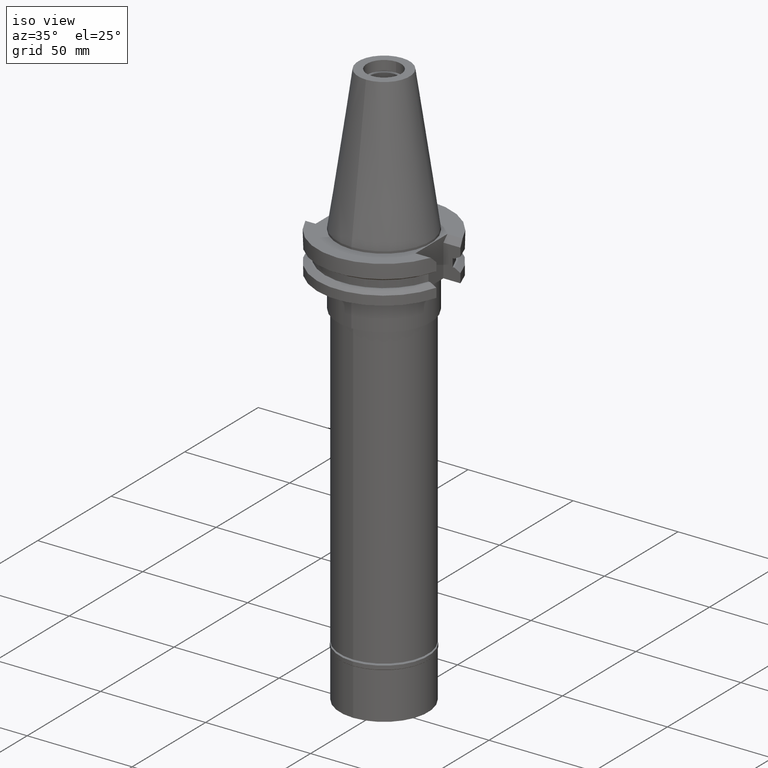
[diagram: clean part render]
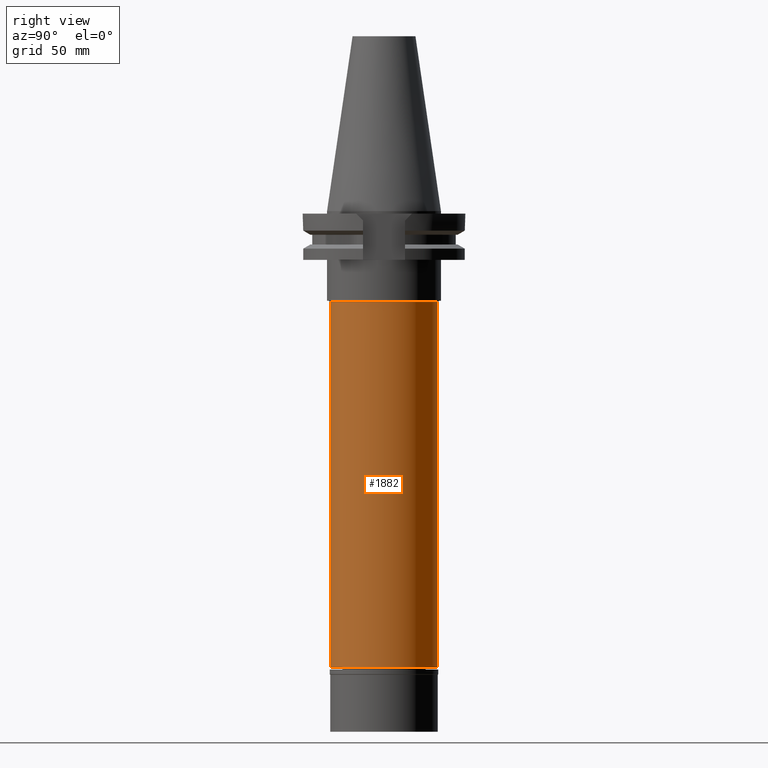
[diagram: tour spotlight — one face highlighted and labeled with its STEP entity id]
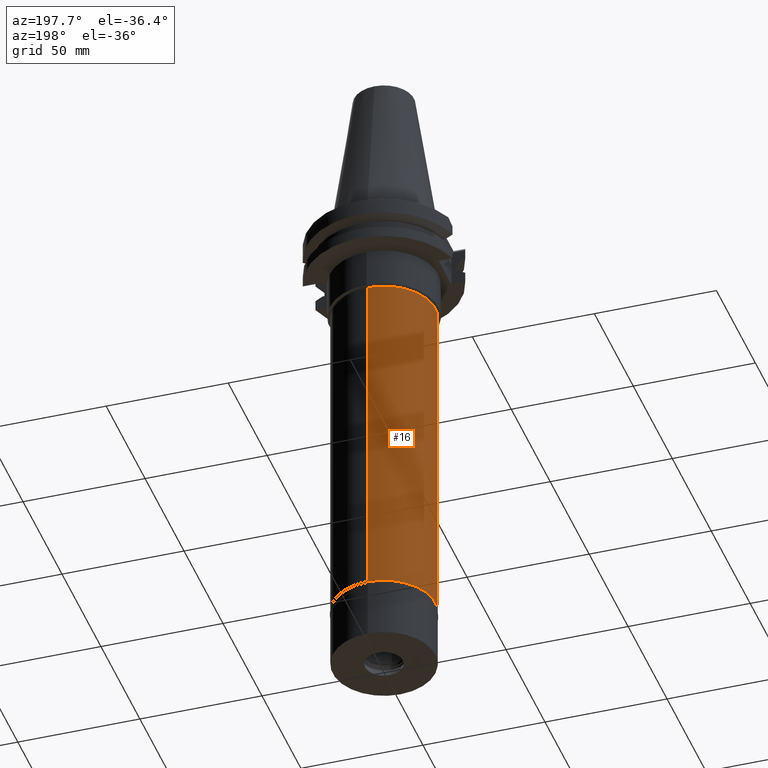
[diagram: tour spotlight — one face highlighted and labeled with its STEP entity id]
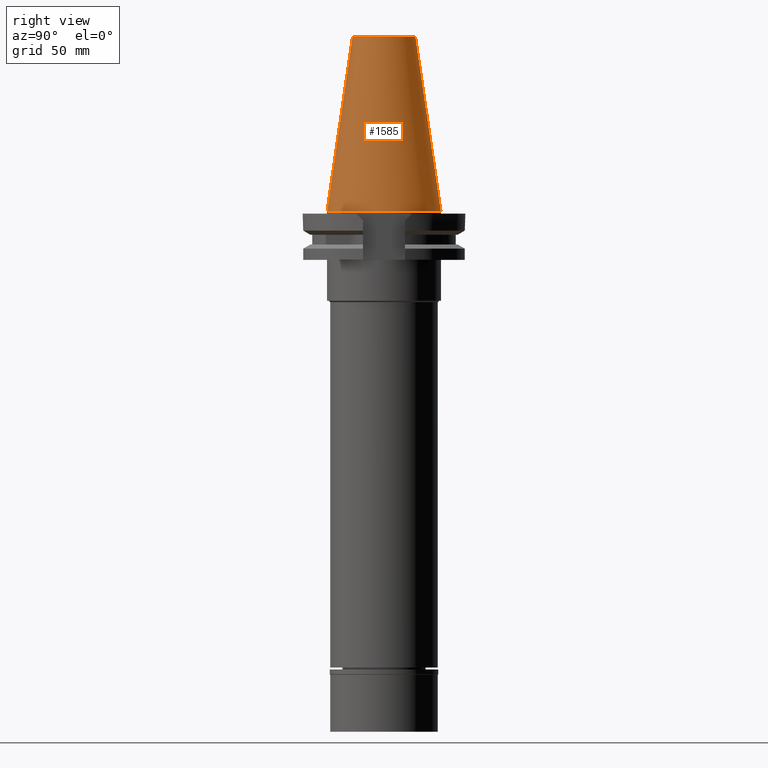
[diagram: tour spotlight — one face highlighted and labeled with its STEP entity id]
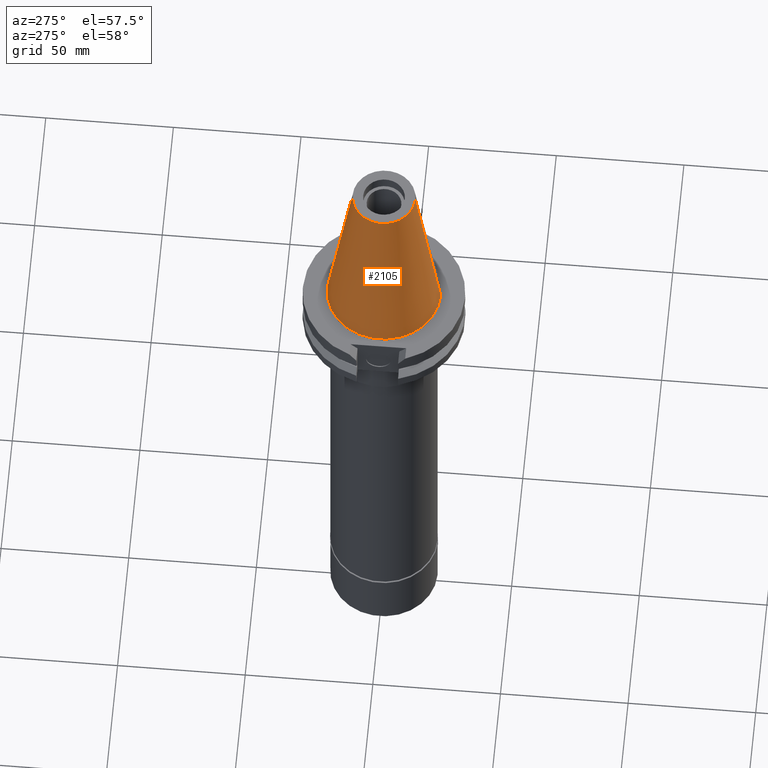
[diagram: tour spotlight — one face highlighted and labeled with its STEP entity id]
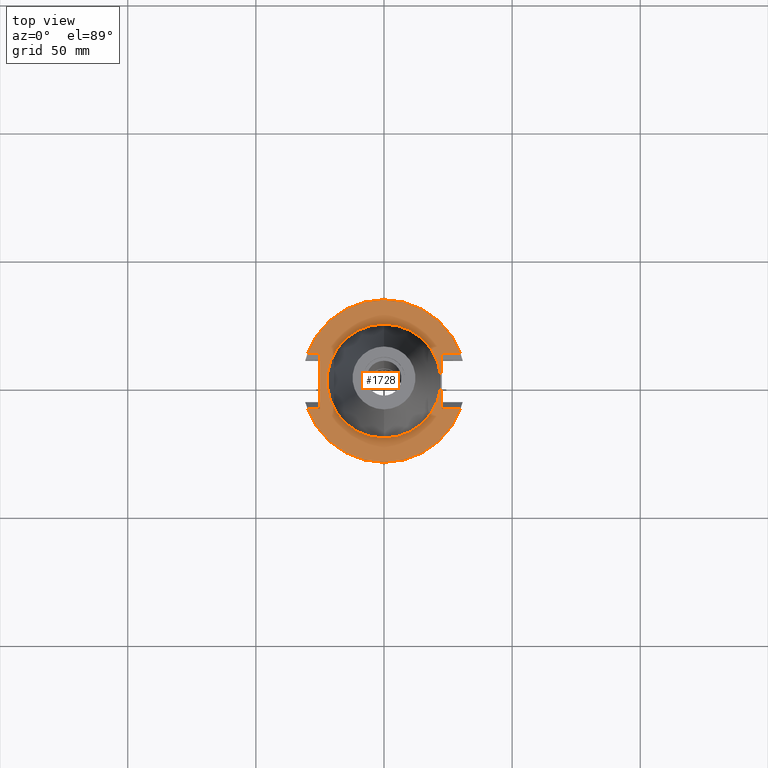
[diagram: tour spotlight — one face highlighted and labeled with its STEP entity id]
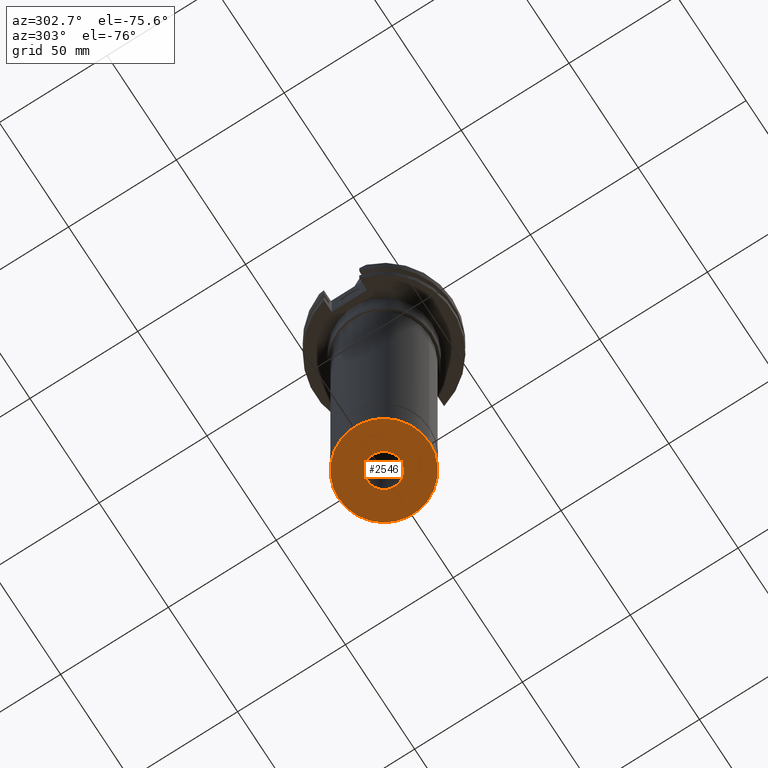
[diagram: tour spotlight — one face highlighted and labeled with its STEP entity id]
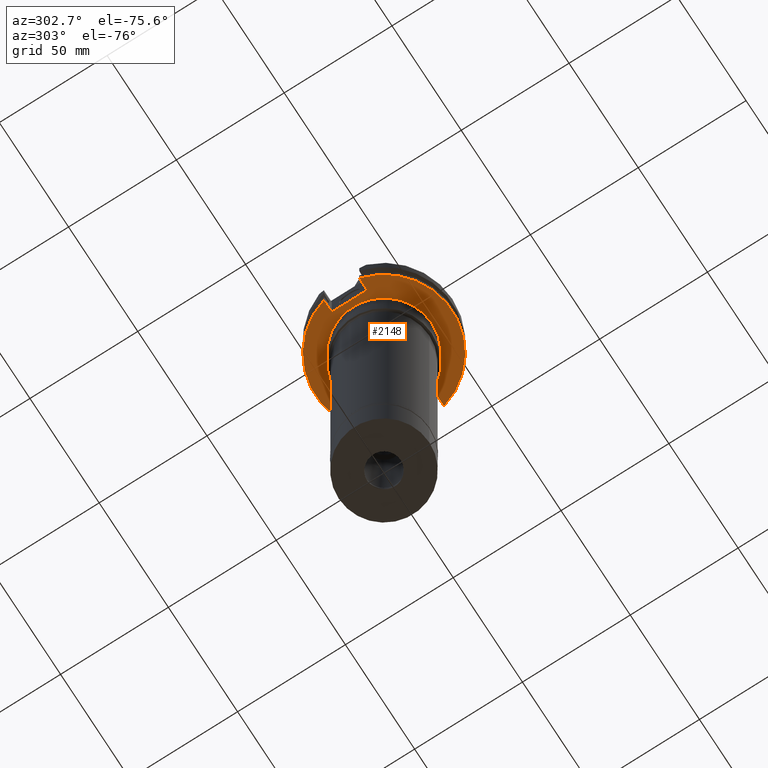
[diagram: tour spotlight — one face highlighted and labeled with its STEP entity id]
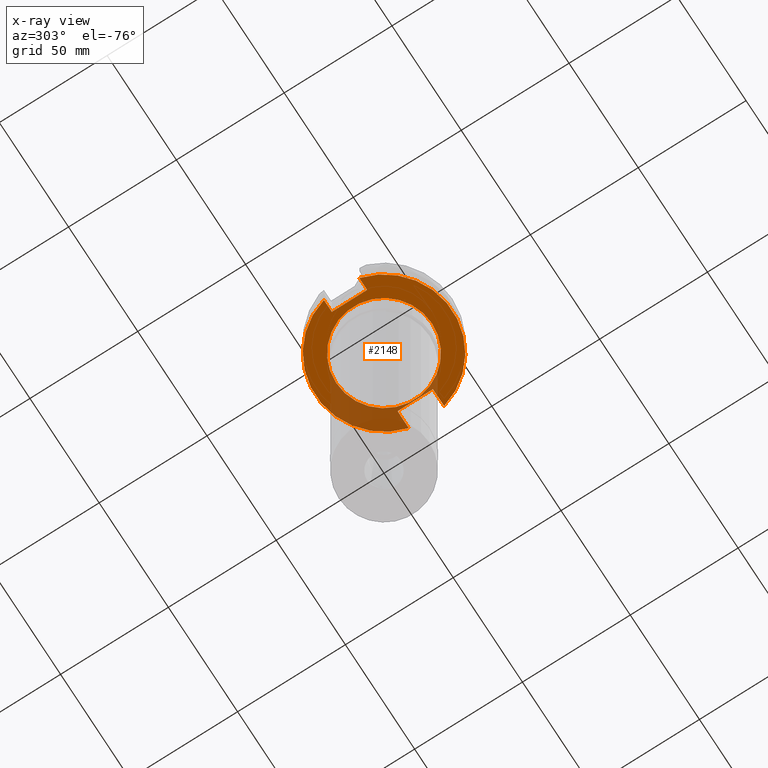
[diagram: x-ray of the same camera — body ghosted, this tour face saturated]
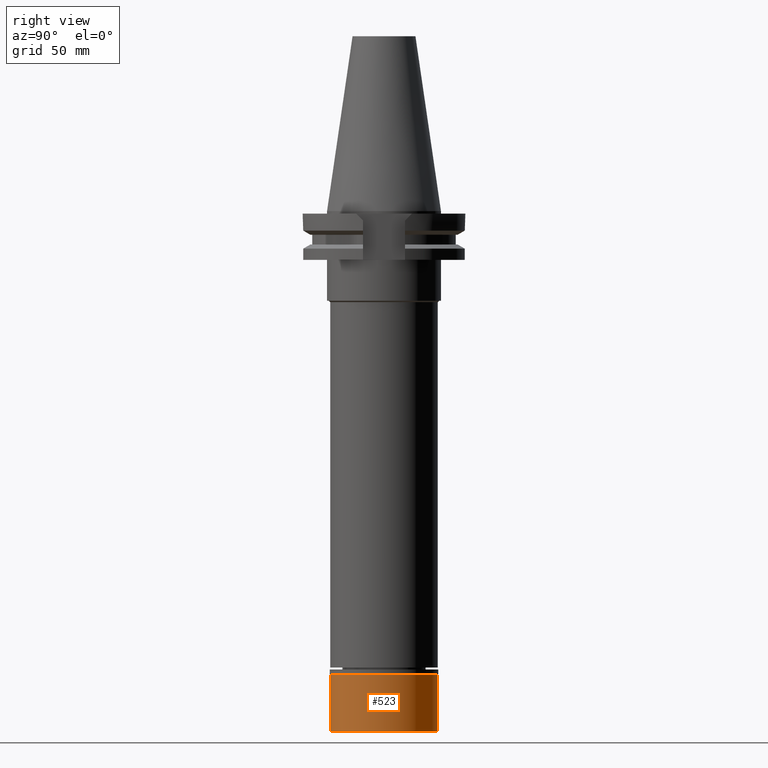
[diagram: tour spotlight — one face highlighted and labeled with its STEP entity id]
A machine part: a face-by-face anatomy tour. The part has 90 B-rep faces; the first image is the clean iso view, then the 8 largest visible faces are spotlighted one at a time (largest first), each with its STEP entity span.

Face 1 — right view, entity #1882. In plain terms, the highlighted cylindrical surface (partial cylindrical patch) has radius 21 mm, axis along (0, 0, -1).
Definition (entity closure, byte-faithful):
#57 = CARTESIAN_POINT ( 'NONE',  ( 0.0000000000000000000, 21.00000000000000000, -35.50000000000000000 ) ) ;
#154 = AXIS2_PLACEMENT_3D ( 'NONE', #854, #2936, #1121 ) ;
#167 = DIRECTION ( 'NONE',  ( 0.0000000000000000000, 0.0000000000000000000, 1.000000000000000000 ) ) ;
#199 = ORIENTED_EDGE ( 'NONE', *, *, #1993, .T. ) ;
#255 = VECTOR ( 'NONE', #792, 1000.000000000000000 ) ;
#348 = CYLINDRICAL_SURFACE ( 'NONE', #154, 21.00000000000000000 ) ;
#428 = EDGE_CURVE ( 'NONE', #2788, #2561, #1457, .T. ) ;
#436 = CARTESIAN_POINT ( 'NONE',  ( 0.0000000000000000000, -21.00000000000000000, -178.0999999999999943 ) ) ;
#455 = LINE ( 'NONE', #3243, #569 ) ;
#569 = VECTOR ( 'NONE', #701, 1000.000000000000000 ) ;
#701 = DIRECTION ( 'NONE',  ( 0.0000000000000000000, 0.0000000000000000000, -1.000000000000000000 ) ) ;
#792 = DIRECTION ( 'NONE',  ( 0.0000000000000000000, 0.0000000000000000000, -1.000000000000000000 ) ) ;
#813 = VERTEX_POINT ( 'NONE', #2826 ) ;
#854 = CARTESIAN_POINT ( 'NONE',  ( 0.0000000000000000000, 2.222091000882999701E-14, 81.44750000000000512 ) ) ;
#989 = ORIENTED_EDGE ( 'NONE', *, *, #3167, .T. ) ;
#1121 = DIRECTION ( 'NONE',  ( 0.0000000000000000000, -1.000000000000000000, 0.0000000000000000000 ) ) ;
#1293 = CIRCLE ( 'NONE', #1726, 21.00000000000000000 ) ;
#1302 = EDGE_LOOP ( 'NONE', ( #989, #199, #2799, #1860 ) ) ;
#1375 = FACE_OUTER_BOUND ( 'NONE', #1302, .T. ) ;
#1452 = DIRECTION ( 'NONE',  ( 0.0000000000000000000, 1.000000000000000000, 0.0000000000000000000 ) ) ;
#1457 = CIRCLE ( 'NONE', #1873, 21.00000000000000000 ) ;
#1670 = DIRECTION ( 'NONE',  ( 0.0000000000000000000, 0.0000000000000000000, -1.000000000000000000 ) ) ;
#1691 = CARTESIAN_POINT ( 'NONE',  ( 0.0000000000000000000, 0.0000000000000000000, -35.50000000000000000 ) ) ;
#1726 = AXIS2_PLACEMENT_3D ( 'NONE', #1691, #1670, #1452 ) ;
#1860 = ORIENTED_EDGE ( 'NONE', *, *, #2916, .F. ) ;
#1873 = AXIS2_PLACEMENT_3D ( 'NONE', #1880, #167, #2640 ) ;
#1880 = CARTESIAN_POINT ( 'NONE',  ( 0.0000000000000000000, 2.222091000882999701E-14, -178.0999999999999943 ) ) ;
#1882 = ADVANCED_FACE ( 'NONE', ( #1375 ), #348, .T. ) ;
#1993 = EDGE_CURVE ( 'NONE', #813, #2788, #455, .T. ) ;
#2116 = VERTEX_POINT ( 'NONE', #57 ) ;
#2117 = CARTESIAN_POINT ( 'NONE',  ( 0.0000000000000000000, 21.00000000000000000, -178.0999999999999943 ) ) ;
#2265 = CARTESIAN_POINT ( 'NONE',  ( 0.0000000000000000000, 21.00000000000000000, -35.50000000000000000 ) ) ;
#2561 = VERTEX_POINT ( 'NONE', #2117 ) ;
#2640 = DIRECTION ( 'NONE',  ( 0.0000000000000000000, -1.000000000000000000, 0.0000000000000000000 ) ) ;
#2788 = VERTEX_POINT ( 'NONE', #436 ) ;
#2799 = ORIENTED_EDGE ( 'NONE', *, *, #428, .T. ) ;
#2826 = CARTESIAN_POINT ( 'NONE',  ( 0.0000000000000000000, -21.00000000000000000, -35.50000000000000000 ) ) ;
#2916 = EDGE_CURVE ( 'NONE', #2116, #2561, #3089, .T. ) ;
#2936 = DIRECTION ( 'NONE',  ( 0.0000000000000000000, 0.0000000000000000000, -1.000000000000000000 ) ) ;
#3089 = LINE ( 'NONE', #2265, #255 ) ;
#3167 = EDGE_CURVE ( 'NONE', #2116, #813, #1293, .T. ) ;
#3243 = CARTESIAN_POINT ( 'NONE',  ( 0.0000000000000000000, -21.00000000000000000, -35.50000000000000000 ) ) ;

Face 2 — auxiliary view, entity #16. In plain terms, the highlighted cylindrical surface (partial cylindrical patch) has radius 21 mm, axis along (0, 0, -1).
Definition (entity closure, byte-faithful):
#16 = ADVANCED_FACE ( 'NONE', ( #2006 ), #2801, .T. ) ;
#57 = CARTESIAN_POINT ( 'NONE',  ( 0.0000000000000000000, 21.00000000000000000, -35.50000000000000000 ) ) ;
#240 = DIRECTION ( 'NONE',  ( 0.0000000000000000000, 0.0000000000000000000, -1.000000000000000000 ) ) ;
#255 = VECTOR ( 'NONE', #792, 1000.000000000000000 ) ;
#373 = EDGE_LOOP ( 'NONE', ( #2215, #594, #2947, #1201 ) ) ;
#436 = CARTESIAN_POINT ( 'NONE',  ( 0.0000000000000000000, -21.00000000000000000, -178.0999999999999943 ) ) ;
#455 = LINE ( 'NONE', #3243, #569 ) ;
#460 = CARTESIAN_POINT ( 'NONE',  ( 0.0000000000000000000, 0.0000000000000000000, -35.50000000000000000 ) ) ;
#569 = VECTOR ( 'NONE', #701, 1000.000000000000000 ) ;
#594 = ORIENTED_EDGE ( 'NONE', *, *, #1993, .F. ) ;
#701 = DIRECTION ( 'NONE',  ( 0.0000000000000000000, 0.0000000000000000000, -1.000000000000000000 ) ) ;
#719 = AXIS2_PLACEMENT_3D ( 'NONE', #460, #240, #3279 ) ;
#792 = DIRECTION ( 'NONE',  ( 0.0000000000000000000, 0.0000000000000000000, -1.000000000000000000 ) ) ;
#813 = VERTEX_POINT ( 'NONE', #2826 ) ;
#1201 = ORIENTED_EDGE ( 'NONE', *, *, #2916, .T. ) ;
#1492 = CARTESIAN_POINT ( 'NONE',  ( 0.0000000000000000000, 2.222091000882999701E-14, 81.44750000000000512 ) ) ;
#1543 = EDGE_CURVE ( 'NONE', #813, #2116, #3233, .T. ) ;
#1632 = AXIS2_PLACEMENT_3D ( 'NONE', #1492, #2506, #3038 ) ;
#1993 = EDGE_CURVE ( 'NONE', #813, #2788, #455, .T. ) ;
#2006 = FACE_OUTER_BOUND ( 'NONE', #373, .T. ) ;
#2116 = VERTEX_POINT ( 'NONE', #57 ) ;
#2117 = CARTESIAN_POINT ( 'NONE',  ( 0.0000000000000000000, 21.00000000000000000, -178.0999999999999943 ) ) ;
#2149 = EDGE_CURVE ( 'NONE', #2561, #2788, #2649, .T. ) ;
#2215 = ORIENTED_EDGE ( 'NONE', *, *, #2149, .T. ) ;
#2265 = CARTESIAN_POINT ( 'NONE',  ( 0.0000000000000000000, 21.00000000000000000, -35.50000000000000000 ) ) ;
#2298 = DIRECTION ( 'NONE',  ( 0.0000000000000000000, 1.000000000000000000, 0.0000000000000000000 ) ) ;
#2506 = DIRECTION ( 'NONE',  ( 0.0000000000000000000, 0.0000000000000000000, -1.000000000000000000 ) ) ;
#2536 = AXIS2_PLACEMENT_3D ( 'NONE', #2863, #3120, #2298 ) ;
#2561 = VERTEX_POINT ( 'NONE', #2117 ) ;
#2649 = CIRCLE ( 'NONE', #2536, 21.00000000000000000 ) ;
#2788 = VERTEX_POINT ( 'NONE', #436 ) ;
#2801 = CYLINDRICAL_SURFACE ( 'NONE', #1632, 21.00000000000000000 ) ;
#2826 = CARTESIAN_POINT ( 'NONE',  ( 0.0000000000000000000, -21.00000000000000000, -35.50000000000000000 ) ) ;
#2863 = CARTESIAN_POINT ( 'NONE',  ( 0.0000000000000000000, 2.222091000882999701E-14, -178.0999999999999943 ) ) ;
#2916 = EDGE_CURVE ( 'NONE', #2116, #2561, #3089, .T. ) ;
#2947 = ORIENTED_EDGE ( 'NONE', *, *, #1543, .T. ) ;
#3038 = DIRECTION ( 'NONE',  ( 0.0000000000000000000, -1.000000000000000000, 0.0000000000000000000 ) ) ;
#3089 = LINE ( 'NONE', #2265, #255 ) ;
#3120 = DIRECTION ( 'NONE',  ( 0.0000000000000000000, 0.0000000000000000000, 1.000000000000000000 ) ) ;
#3233 = CIRCLE ( 'NONE', #719, 21.00000000000000000 ) ;
#3243 = CARTESIAN_POINT ( 'NONE',  ( 0.0000000000000000000, -21.00000000000000000, -35.50000000000000000 ) ) ;
#3279 = DIRECTION ( 'NONE',  ( 0.0000000000000000000, -1.000000000000000000, 0.0000000000000000000 ) ) ;

Face 3 — right view, entity #1585. In plain terms, the highlighted conical surface has half-angle 8.297 deg.
Definition (entity closure, byte-faithful):
#202 = EDGE_CURVE ( 'NONE', #2384, #1920, #1658, .T. ) ;
#527 = EDGE_CURVE ( 'NONE', #1145, #2384, #2111, .T. ) ;
#554 = AXIS2_PLACEMENT_3D ( 'NONE', #1751, #2993, #720 ) ;
#647 = DIRECTION ( 'NONE',  ( 0.0000000000000000000, 1.000000000000000000, 0.0000000000000000000 ) ) ;
#720 = DIRECTION ( 'NONE',  ( 0.0000000000000000000, -1.000000000000000000, 0.0000000000000000000 ) ) ;
#946 = CARTESIAN_POINT ( 'NONE',  ( 0.0000000000000000000, 1.642557519355999895E-14, -3.126388037344000570E-13 ) ) ;
#965 = FACE_OUTER_BOUND ( 'NONE', #2358, .T. ) ;
#1014 = VECTOR ( 'NONE', #2946, 1000.000000000000114 ) ;
#1145 = VERTEX_POINT ( 'NONE', #2896 ) ;
#1343 = VERTEX_POINT ( 'NONE', #2411 ) ;
#1389 = ORIENTED_EDGE ( 'NONE', *, *, #527, .F. ) ;
#1524 = DIRECTION ( 'NONE',  ( 0.0000000000000000000, -0.1443069799456937474, -0.9895329683941577192 ) ) ;
#1568 = CARTESIAN_POINT ( 'NONE',  ( 0.0000000000000000000, -12.27186888070000137, 68.25000000000000000 ) ) ;
#1585 = ADVANCED_FACE ( 'NONE', ( #965 ), #1991, .T. ) ;
#1600 = AXIS2_PLACEMENT_3D ( 'NONE', #946, #2735, #3258 ) ;
#1625 = VECTOR ( 'NONE', #1524, 1000.000000000000114 ) ;
#1658 = CIRCLE ( 'NONE', #1600, 22.22500000000000142 ) ;
#1662 = CARTESIAN_POINT ( 'NONE',  ( 0.0000000000000000000, -22.22500000000000142, -2.415845301584000349E-13 ) ) ;
#1692 = ORIENTED_EDGE ( 'NONE', *, *, #2553, .T. ) ;
#1751 = CARTESIAN_POINT ( 'NONE',  ( 0.0000000000000000000, 1.642557519355999895E-14, 34.12500000000000000 ) ) ;
#1878 = AXIS2_PLACEMENT_3D ( 'NONE', #2666, #2153, #647 ) ;
#1920 = VERTEX_POINT ( 'NONE', #1662 ) ;
#1991 = CONICAL_SURFACE ( 'NONE', #554, 17.24843444035000317, 0.1448125860318199565 ) ;
#1994 = CIRCLE ( 'NONE', #1878, 12.27186888070000137 ) ;
#2111 = LINE ( 'NONE', #2379, #1014 ) ;
#2153 = DIRECTION ( 'NONE',  ( 0.0000000000000000000, 0.0000000000000000000, -1.000000000000000000 ) ) ;
#2249 = ORIENTED_EDGE ( 'NONE', *, *, #2830, .T. ) ;
#2295 = LINE ( 'NONE', #1568, #1625 ) ;
#2358 = EDGE_LOOP ( 'NONE', ( #1692, #2249, #2412, #1389 ) ) ;
#2379 = CARTESIAN_POINT ( 'NONE',  ( 0.0000000000000000000, 12.27186888070000137, 68.25000000000000000 ) ) ;
#2384 = VERTEX_POINT ( 'NONE', #3135 ) ;
#2411 = CARTESIAN_POINT ( 'NONE',  ( 0.0000000000000000000, -12.27186888070000137, 68.25000000000000000 ) ) ;
#2412 = ORIENTED_EDGE ( 'NONE', *, *, #202, .F. ) ;
#2553 = EDGE_CURVE ( 'NONE', #1145, #1343, #1994, .T. ) ;
#2666 = CARTESIAN_POINT ( 'NONE',  ( 0.0000000000000000000, 1.642557519355999895E-14, 68.25000000000000000 ) ) ;
#2735 = DIRECTION ( 'NONE',  ( 0.0000000000000000000, 0.0000000000000000000, -1.000000000000000000 ) ) ;
#2830 = EDGE_CURVE ( 'NONE', #1343, #1920, #2295, .T. ) ;
#2896 = CARTESIAN_POINT ( 'NONE',  ( 0.0000000000000000000, 12.27186888070000137, 68.25000000000000000 ) ) ;
#2946 = DIRECTION ( 'NONE',  ( 0.0000000000000000000, 0.1443069799456937474, -0.9895329683941577192 ) ) ;
#2993 = DIRECTION ( 'NONE',  ( 0.0000000000000000000, 0.0000000000000000000, -1.000000000000000000 ) ) ;
#3135 = CARTESIAN_POINT ( 'NONE',  ( 0.0000000000000000000, 22.22500000000000142, -2.415845301584000349E-13 ) ) ;
#3258 = DIRECTION ( 'NONE',  ( 0.0000000000000000000, 1.000000000000000000, 0.0000000000000000000 ) ) ;

Face 4 — auxiliary view, entity #2105. In plain terms, the highlighted conical surface has half-angle 8.297 deg.
Definition (entity closure, byte-faithful):
#24 = ORIENTED_EDGE ( 'NONE', *, *, #527, .T. ) ;
#28 = DIRECTION ( 'NONE',  ( 0.0000000000000000000, 0.0000000000000000000, -1.000000000000000000 ) ) ;
#142 = DIRECTION ( 'NONE',  ( 0.0000000000000000000, -1.000000000000000000, 0.0000000000000000000 ) ) ;
#171 = DIRECTION ( 'NONE',  ( 0.0000000000000000000, 0.0000000000000000000, -1.000000000000000000 ) ) ;
#177 = ORIENTED_EDGE ( 'NONE', *, *, #2453, .T. ) ;
#527 = EDGE_CURVE ( 'NONE', #1145, #2384, #2111, .T. ) ;
#543 = DIRECTION ( 'NONE',  ( 0.0000000000000000000, -1.000000000000000000, 0.0000000000000000000 ) ) ;
#584 = ORIENTED_EDGE ( 'NONE', *, *, #2830, .F. ) ;
#764 = FACE_OUTER_BOUND ( 'NONE', #2449, .T. ) ;
#818 = AXIS2_PLACEMENT_3D ( 'NONE', #2929, #171, #2440 ) ;
#1014 = VECTOR ( 'NONE', #2946, 1000.000000000000114 ) ;
#1112 = ORIENTED_EDGE ( 'NONE', *, *, #3210, .F. ) ;
#1145 = VERTEX_POINT ( 'NONE', #2896 ) ;
#1190 = AXIS2_PLACEMENT_3D ( 'NONE', #2415, #1835, #142 ) ;
#1343 = VERTEX_POINT ( 'NONE', #2411 ) ;
#1524 = DIRECTION ( 'NONE',  ( 0.0000000000000000000, -0.1443069799456937474, -0.9895329683941577192 ) ) ;
#1568 = CARTESIAN_POINT ( 'NONE',  ( 0.0000000000000000000, -12.27186888070000137, 68.25000000000000000 ) ) ;
#1625 = VECTOR ( 'NONE', #1524, 1000.000000000000114 ) ;
#1662 = CARTESIAN_POINT ( 'NONE',  ( 0.0000000000000000000, -22.22500000000000142, -2.415845301584000349E-13 ) ) ;
#1807 = CARTESIAN_POINT ( 'NONE',  ( 0.0000000000000000000, 1.642557519355999895E-14, 34.12500000000000000 ) ) ;
#1835 = DIRECTION ( 'NONE',  ( 0.0000000000000000000, 0.0000000000000000000, -1.000000000000000000 ) ) ;
#1920 = VERTEX_POINT ( 'NONE', #1662 ) ;
#1961 = AXIS2_PLACEMENT_3D ( 'NONE', #1807, #28, #543 ) ;
#2102 = CONICAL_SURFACE ( 'NONE', #1961, 17.24843444035000317, 0.1448125860318199565 ) ;
#2105 = ADVANCED_FACE ( 'NONE', ( #764 ), #2102, .T. ) ;
#2111 = LINE ( 'NONE', #2379, #1014 ) ;
#2253 = CIRCLE ( 'NONE', #818, 12.27186888070000137 ) ;
#2295 = LINE ( 'NONE', #1568, #1625 ) ;
#2379 = CARTESIAN_POINT ( 'NONE',  ( 0.0000000000000000000, 12.27186888070000137, 68.25000000000000000 ) ) ;
#2384 = VERTEX_POINT ( 'NONE', #3135 ) ;
#2411 = CARTESIAN_POINT ( 'NONE',  ( 0.0000000000000000000, -12.27186888070000137, 68.25000000000000000 ) ) ;
#2415 = CARTESIAN_POINT ( 'NONE',  ( 0.0000000000000000000, 1.642557519355999895E-14, -3.126388037344000570E-13 ) ) ;
#2440 = DIRECTION ( 'NONE',  ( 0.0000000000000000000, -1.000000000000000000, 0.0000000000000000000 ) ) ;
#2449 = EDGE_LOOP ( 'NONE', ( #1112, #584, #177, #24 ) ) ;
#2453 = EDGE_CURVE ( 'NONE', #1343, #1145, #2253, .T. ) ;
#2623 = CIRCLE ( 'NONE', #1190, 22.22500000000000142 ) ;
#2830 = EDGE_CURVE ( 'NONE', #1343, #1920, #2295, .T. ) ;
#2896 = CARTESIAN_POINT ( 'NONE',  ( 0.0000000000000000000, 12.27186888070000137, 68.25000000000000000 ) ) ;
#2929 = CARTESIAN_POINT ( 'NONE',  ( 0.0000000000000000000, 1.642557519355999895E-14, 68.25000000000000000 ) ) ;
#2946 = DIRECTION ( 'NONE',  ( 0.0000000000000000000, 0.1443069799456937474, -0.9895329683941577192 ) ) ;
#3135 = CARTESIAN_POINT ( 'NONE',  ( 0.0000000000000000000, 22.22500000000000142, -2.415845301584000349E-13 ) ) ;
#3210 = EDGE_CURVE ( 'NONE', #1920, #2384, #2623, .T. ) ;

Face 5 — top view, entity #1728. In plain terms, the highlighted planar face has unit normal (0, 0, -1).
Definition (entity closure, byte-faithful):
#10 = EDGE_CURVE ( 'NONE', #1035, #2472, #235, .T. ) ;
#62 = CARTESIAN_POINT ( 'NONE',  ( 0.0000000000000000000, 22.22500000000000142, -1.000000000000000000 ) ) ;
#85 = CARTESIAN_POINT ( 'NONE',  ( 0.0000000000000000000, 2.222091000882999701E-14, -1.000000000000000000 ) ) ;
#96 = CARTESIAN_POINT ( 'NONE',  ( 22.57000000000000028, 10.89000000000000057, -1.000000000000000000 ) ) ;
#113 = CARTESIAN_POINT ( 'NONE',  ( 0.0000000000000000000, 2.222091000882999701E-14, -1.000000000000000000 ) ) ;
#124 = ORIENTED_EDGE ( 'NONE', *, *, #1646, .T. ) ;
#235 = LINE ( 'NONE', #1729, #358 ) ;
#290 = CARTESIAN_POINT ( 'NONE',  ( 0.0000000000000000000, 1.212400331155999925E-14, -1.000000000000000000 ) ) ;
#343 = CARTESIAN_POINT ( 'NONE',  ( 29.82399034335000110, 10.89000000000000057, -1.000000000001000089 ) ) ;
#345 = ORIENTED_EDGE ( 'NONE', *, *, #3186, .F. ) ;
#346 = CARTESIAN_POINT ( 'NONE',  ( 22.57000000000000028, -10.89000000000000057, -1.000000000000000000 ) ) ;
#356 = LINE ( 'NONE', #2436, #1917 ) ;
#358 = VECTOR ( 'NONE', #452, 1000.000000000000000 ) ;
#389 = DIRECTION ( 'NONE',  ( 0.0000000000000000000, 1.000000000000000000, 0.0000000000000000000 ) ) ;
#452 = DIRECTION ( 'NONE',  ( 0.0000000000000000000, -1.000000000000000000, 0.0000000000000000000 ) ) ;
#454 = AXIS2_PLACEMENT_3D ( 'NONE', #85, #819, #389 ) ;
#457 = EDGE_CURVE ( 'NONE', #2472, #2430, #356, .T. ) ;
#500 = CARTESIAN_POINT ( 'NONE',  ( -24.98000000000000043, 10.89000000000000057, -1.000000000000000000 ) ) ;
#560 = LINE ( 'NONE', #1836, #2764 ) ;
#604 = EDGE_CURVE ( 'NONE', #2430, #687, #2520, .T. ) ;
#628 = EDGE_CURVE ( 'NONE', #1656, #2614, #1344, .T. ) ;
#687 = VERTEX_POINT ( 'NONE', #1960 ) ;
#695 = CARTESIAN_POINT ( 'NONE',  ( 0.0000000000000000000, 2.222091000882999701E-14, -1.000000000000000000 ) ) ;
#713 = EDGE_CURVE ( 'NONE', #2859, #2474, #758, .T. ) ;
#758 = LINE ( 'NONE', #2261, #2085 ) ;
#819 = DIRECTION ( 'NONE',  ( 0.0000000000000000000, 0.0000000000000000000, -1.000000000000000000 ) ) ;
#830 = ORIENTED_EDGE ( 'NONE', *, *, #2146, .T. ) ;
#970 = VERTEX_POINT ( 'NONE', #1653 ) ;
#1006 = DIRECTION ( 'NONE',  ( -1.000000000000000000, -8.727782216946000332E-14, 0.0000000000000000000 ) ) ;
#1035 = VERTEX_POINT ( 'NONE', #96 ) ;
#1038 = EDGE_CURVE ( 'NONE', #2614, #1656, #1285, .T. ) ;
#1229 = CARTESIAN_POINT ( 'NONE',  ( -24.98000000000000043, 10.89000000000000057, -1.000000000000000000 ) ) ;
#1238 = DIRECTION ( 'NONE',  ( 0.0000000000000000000, 1.000000000000000000, 0.0000000000000000000 ) ) ;
#1240 = AXIS2_PLACEMENT_3D ( 'NONE', #695, #1473, #1757 ) ;
#1247 = AXIS2_PLACEMENT_3D ( 'NONE', #1711, #3000, #1238 ) ;
#1285 = CIRCLE ( 'NONE', #2283, 22.22500000000000142 ) ;
#1327 = FACE_OUTER_BOUND ( 'NONE', #1954, .T. ) ;
#1338 = CARTESIAN_POINT ( 'NONE',  ( -24.98000000000000043, -10.89000000000000057, -1.000000000000000000 ) ) ;
#1341 = ORIENTED_EDGE ( 'NONE', *, *, #10, .F. ) ;
#1344 = CIRCLE ( 'NONE', #1247, 22.22500000000000142 ) ;
#1368 = CARTESIAN_POINT ( 'NONE',  ( 29.82399034335000110, -10.89000000000000057, -1.000000000001000089 ) ) ;
#1473 = DIRECTION ( 'NONE',  ( 0.0000000000000000000, 0.0000000000000000000, -1.000000000000000000 ) ) ;
#1528 = PLANE ( 'NONE',  #3194 ) ;
#1557 = DIRECTION ( 'NONE',  ( -1.000000000000000000, 8.764453570797998445E-14, 0.0000000000000000000 ) ) ;
#1594 = FACE_BOUND ( 'NONE', #1935, .T. ) ;
#1614 = DIRECTION ( 'NONE',  ( 0.0000000000000000000, -1.000000000000000000, 0.0000000000000000000 ) ) ;
#1635 = ORIENTED_EDGE ( 'NONE', *, *, #628, .F. ) ;
#1646 = EDGE_CURVE ( 'NONE', #970, #687, #1838, .T. ) ;
#1653 = CARTESIAN_POINT ( 'NONE',  ( -24.98000000000000043, -10.89000000000000057, -1.000000000000000000 ) ) ;
#1656 = VERTEX_POINT ( 'NONE', #62 ) ;
#1711 = CARTESIAN_POINT ( 'NONE',  ( 0.0000000000000000000, 2.222091000882999701E-14, -1.000000000000000000 ) ) ;
#1728 = ADVANCED_FACE ( 'NONE', ( #1327, #1594 ), #1528, .F. ) ;
#1729 = CARTESIAN_POINT ( 'NONE',  ( 22.57000000000000028, 10.89000000000000057, -1.000000000000000000 ) ) ;
#1738 = VECTOR ( 'NONE', #2443, 1000.000000000000000 ) ;
#1757 = DIRECTION ( 'NONE',  ( 0.0000000000000000000, -1.000000000000000000, 0.0000000000000000000 ) ) ;
#1836 = CARTESIAN_POINT ( 'NONE',  ( 22.57000000000000028, 10.89000000000000057, -1.000000000000000000 ) ) ;
#1838 = LINE ( 'NONE', #1338, #2008 ) ;
#1907 = CARTESIAN_POINT ( 'NONE',  ( -29.82399034335000110, 10.89000000000000057, -1.000000000000000000 ) ) ;
#1917 = VECTOR ( 'NONE', #2418, 1000.000000000000000 ) ;
#1935 = EDGE_LOOP ( 'NONE', ( #1635, #2435 ) ) ;
#1954 = EDGE_LOOP ( 'NONE', ( #830, #345, #2785, #2961, #124, #2327, #3113, #1341 ) ) ;
#1960 = CARTESIAN_POINT ( 'NONE',  ( -29.82399034335000110, -10.89000000000000057, -1.000000000001000089 ) ) ;
#2008 = VECTOR ( 'NONE', #1557, 1000.000000000000000 ) ;
#2023 = DIRECTION ( 'NONE',  ( 1.000000000000000000, -5.754678976681000475E-14, 0.0000000000000000000 ) ) ;
#2071 = DIRECTION ( 'NONE',  ( 0.0000000000000000000, 0.0000000000000000000, -1.000000000000000000 ) ) ;
#2085 = VECTOR ( 'NONE', #1006, 1000.000000000000000 ) ;
#2146 = EDGE_CURVE ( 'NONE', #1035, #2361, #560, .T. ) ;
#2261 = CARTESIAN_POINT ( 'NONE',  ( -24.98000000000000043, 10.89000000000000057, -1.000000000000000000 ) ) ;
#2283 = AXIS2_PLACEMENT_3D ( 'NONE', #113, #3215, #1614 ) ;
#2327 = ORIENTED_EDGE ( 'NONE', *, *, #604, .F. ) ;
#2361 = VERTEX_POINT ( 'NONE', #343 ) ;
#2418 = DIRECTION ( 'NONE',  ( 1.000000000000000000, 5.926094946199000653E-14, 0.0000000000000000000 ) ) ;
#2430 = VERTEX_POINT ( 'NONE', #1368 ) ;
#2435 = ORIENTED_EDGE ( 'NONE', *, *, #1038, .F. ) ;
#2436 = CARTESIAN_POINT ( 'NONE',  ( 22.57000000000000028, -10.89000000000000057, -1.000000000000000000 ) ) ;
#2443 = DIRECTION ( 'NONE',  ( 0.0000000000000000000, -1.000000000000000000, 0.0000000000000000000 ) ) ;
#2466 = CIRCLE ( 'NONE', #454, 31.75000000000000000 ) ;
#2472 = VERTEX_POINT ( 'NONE', #346 ) ;
#2474 = VERTEX_POINT ( 'NONE', #1907 ) ;
#2520 = CIRCLE ( 'NONE', #1240, 31.75000000000000000 ) ;
#2614 = VERTEX_POINT ( 'NONE', #2950 ) ;
#2704 = EDGE_CURVE ( 'NONE', #2859, #970, #3291, .T. ) ;
#2764 = VECTOR ( 'NONE', #2023, 1000.000000000000000 ) ;
#2785 = ORIENTED_EDGE ( 'NONE', *, *, #713, .F. ) ;
#2859 = VERTEX_POINT ( 'NONE', #500 ) ;
#2950 = CARTESIAN_POINT ( 'NONE',  ( 0.0000000000000000000, -22.22500000000000142, -1.000000000000000000 ) ) ;
#2961 = ORIENTED_EDGE ( 'NONE', *, *, #2704, .T. ) ;
#3000 = DIRECTION ( 'NONE',  ( 0.0000000000000000000, 0.0000000000000000000, 1.000000000000000000 ) ) ;
#3108 = DIRECTION ( 'NONE',  ( 0.0000000000000000000, -1.000000000000000000, 0.0000000000000000000 ) ) ;
#3113 = ORIENTED_EDGE ( 'NONE', *, *, #457, .F. ) ;
#3186 = EDGE_CURVE ( 'NONE', #2474, #2361, #2466, .T. ) ;
#3194 = AXIS2_PLACEMENT_3D ( 'NONE', #290, #2071, #3108 ) ;
#3215 = DIRECTION ( 'NONE',  ( 0.0000000000000000000, 0.0000000000000000000, 1.000000000000000000 ) ) ;
#3291 = LINE ( 'NONE', #1229, #1738 ) ;

Face 6 — auxiliary view, entity #2546. In plain terms, the highlighted planar face has unit normal (0, 0, -1).
Definition (entity closure, byte-faithful):
#84 = EDGE_CURVE ( 'NONE', #1879, #2691, #2162, .T. ) ;
#188 = DIRECTION ( 'NONE',  ( 0.0000000000000000000, 0.0000000000000000000, 1.000000000000000000 ) ) ;
#261 = DIRECTION ( 'NONE',  ( 0.0000000000000000000, -1.000000000000000000, 0.0000000000000000000 ) ) ;
#268 = DIRECTION ( 'NONE',  ( 0.0000000000000000000, 1.000000000000000000, 0.0000000000000000000 ) ) ;
#408 = ORIENTED_EDGE ( 'NONE', *, *, #2671, .F. ) ;
#411 = AXIS2_PLACEMENT_3D ( 'NONE', #1493, #188, #3259 ) ;
#427 = DIRECTION ( 'NONE',  ( 0.0000000000000000000, -1.000000000000000000, 0.0000000000000000000 ) ) ;
#494 = CARTESIAN_POINT ( 'NONE',  ( 0.0000000000000000000, 0.0000000000000000000, -24.29999999999999716 ) ) ;
#513 = DIRECTION ( 'NONE',  ( 0.0000000000000000000, 0.0000000000000000000, -1.000000000000000000 ) ) ;
#740 = PLANE ( 'NONE',  #864 ) ;
#744 = EDGE_LOOP ( 'NONE', ( #1652, #1487 ) ) ;
#804 = AXIS2_PLACEMENT_3D ( 'NONE', #1775, #513, #268 ) ;
#864 = AXIS2_PLACEMENT_3D ( 'NONE', #494, #1768, #261 ) ;
#870 = DIRECTION ( 'NONE',  ( 0.0000000000000000000, 0.0000000000000000000, 1.000000000000000000 ) ) ;
#957 = VERTEX_POINT ( 'NONE', #1876 ) ;
#1082 = CARTESIAN_POINT ( 'NONE',  ( 0.0000000000000000000, 0.0000000000000000000, -24.29999999999999716 ) ) ;
#1086 = CIRCLE ( 'NONE', #411, 21.00000000000000000 ) ;
#1155 = DIRECTION ( 'NONE',  ( 0.0000000000000000000, -1.000000000000000000, 0.0000000000000000000 ) ) ;
#1186 = DIRECTION ( 'NONE',  ( 0.0000000000000000000, 0.0000000000000000000, -1.000000000000000000 ) ) ;
#1196 = CARTESIAN_POINT ( 'NONE',  ( 0.0000000000000000000, -21.00000000000000000, -24.29999999999999716 ) ) ;
#1487 = ORIENTED_EDGE ( 'NONE', *, *, #3040, .F. ) ;
#1493 = CARTESIAN_POINT ( 'NONE',  ( 0.0000000000000000000, 0.0000000000000000000, -24.29999999999999716 ) ) ;
#1570 = AXIS2_PLACEMENT_3D ( 'NONE', #1082, #1186, #427 ) ;
#1652 = ORIENTED_EDGE ( 'NONE', *, *, #84, .F. ) ;
#1681 = CARTESIAN_POINT ( 'NONE',  ( 0.0000000000000000000, -7.700000000000000178, -24.29999999999999716 ) ) ;
#1768 = DIRECTION ( 'NONE',  ( 0.0000000000000000000, 0.0000000000000000000, -1.000000000000000000 ) ) ;
#1775 = CARTESIAN_POINT ( 'NONE',  ( 0.0000000000000000000, 0.0000000000000000000, -24.29999999999999716 ) ) ;
#1827 = CIRCLE ( 'NONE', #2696, 21.00000000000000000 ) ;
#1853 = CARTESIAN_POINT ( 'NONE',  ( 0.0000000000000000000, 7.700000000000000178, -24.29999999999999716 ) ) ;
#1876 = CARTESIAN_POINT ( 'NONE',  ( 0.0000000000000000000, 21.00000000000000000, -24.29999999999999716 ) ) ;
#1879 = VERTEX_POINT ( 'NONE', #1853 ) ;
#2029 = FACE_OUTER_BOUND ( 'NONE', #3253, .T. ) ;
#2162 = CIRCLE ( 'NONE', #804, 7.700000000000000178 ) ;
#2386 = EDGE_CURVE ( 'NONE', #2731, #957, #1827, .T. ) ;
#2545 = FACE_BOUND ( 'NONE', #744, .T. ) ;
#2546 = ADVANCED_FACE ( 'NONE', ( #2029, #2545 ), #740, .T. ) ;
#2671 = EDGE_CURVE ( 'NONE', #957, #2731, #1086, .T. ) ;
#2691 = VERTEX_POINT ( 'NONE', #1681 ) ;
#2696 = AXIS2_PLACEMENT_3D ( 'NONE', #3168, #870, #1155 ) ;
#2731 = VERTEX_POINT ( 'NONE', #1196 ) ;
#2855 = CIRCLE ( 'NONE', #1570, 7.700000000000000178 ) ;
#2906 = ORIENTED_EDGE ( 'NONE', *, *, #2386, .F. ) ;
#3040 = EDGE_CURVE ( 'NONE', #2691, #1879, #2855, .T. ) ;
#3168 = CARTESIAN_POINT ( 'NONE',  ( 0.0000000000000000000, 0.0000000000000000000, -24.29999999999999716 ) ) ;
#3253 = EDGE_LOOP ( 'NONE', ( #408, #2906 ) ) ;
#3259 = DIRECTION ( 'NONE',  ( 0.0000000000000000000, 1.000000000000000000, 0.0000000000000000000 ) ) ;

Face 7 — auxiliary view, entity #2148. An x-ray twin of the same camera follows (body ghosted, this face saturated) — the face is partly hidden behind the body. In plain terms, the highlighted planar face has unit normal (0, 0, -1).
Definition (entity closure, byte-faithful):
#22 = ORIENTED_EDGE ( 'NONE', *, *, #3054, .F. ) ;
#50 = VECTOR ( 'NONE', #2478, 1000.000000000000000 ) ;
#99 = EDGE_CURVE ( 'NONE', #2289, #2619, #1228, .T. ) ;
#109 = EDGE_CURVE ( 'NONE', #2213, #143, #383, .T. ) ;
#130 = LINE ( 'NONE', #328, #1407 ) ;
#143 = VERTEX_POINT ( 'NONE', #699 ) ;
#145 = EDGE_CURVE ( 'NONE', #2289, #2017, #2492, .T. ) ;
#204 = ORIENTED_EDGE ( 'NONE', *, *, #2310, .T. ) ;
#253 = DIRECTION ( 'NONE',  ( 0.0000000000000000000, -1.000000000000000000, 0.0000000000000000000 ) ) ;
#300 = LINE ( 'NONE', #2036, #877 ) ;
#313 = DIRECTION ( 'NONE',  ( 0.0000000000000000000, -1.000000000000000000, 0.0000000000000000000 ) ) ;
#328 = CARTESIAN_POINT ( 'NONE',  ( 22.57000000000000028, -8.189999999999999503, -19.05000000000000071 ) ) ;
#329 = CARTESIAN_POINT ( 'NONE',  ( -30.67550162588999640, 8.189999999999999503, -19.05000000000000071 ) ) ;
#361 = DIRECTION ( 'NONE',  ( 0.0000000000000000000, 0.0000000000000000000, 1.000000000000000000 ) ) ;
#383 = CIRCLE ( 'NONE', #444, 22.22500000000000142 ) ;
#430 = VERTEX_POINT ( 'NONE', #679 ) ;
#444 = AXIS2_PLACEMENT_3D ( 'NONE', #1506, #2521, #1477 ) ;
#489 = LINE ( 'NONE', #2251, #3028 ) ;
#490 = CARTESIAN_POINT ( 'NONE',  ( 22.57000000000000028, 8.189999999999999503, -19.05000000000000071 ) ) ;
#575 = CARTESIAN_POINT ( 'NONE',  ( 0.0000000000000000000, 22.22500000000000142, -19.05000000000000071 ) ) ;
#612 = VERTEX_POINT ( 'NONE', #1255 ) ;
#641 = AXIS2_PLACEMENT_3D ( 'NONE', #2562, #3097, #2923 ) ;
#679 = CARTESIAN_POINT ( 'NONE',  ( 22.57000000000000028, 8.189999999999999503, -19.05000000000000071 ) ) ;
#699 = CARTESIAN_POINT ( 'NONE',  ( 0.0000000000000000000, -22.22500000000000142, -19.05000000000000071 ) ) ;
#721 = EDGE_LOOP ( 'NONE', ( #2768, #2563 ) ) ;
#795 = FACE_BOUND ( 'NONE', #721, .T. ) ;
#872 = DIRECTION ( 'NONE',  ( 0.0000000000000000000, -1.000000000000000000, 0.0000000000000000000 ) ) ;
#877 = VECTOR ( 'NONE', #313, 1000.000000000000000 ) ;
#881 = CARTESIAN_POINT ( 'NONE',  ( 0.0000000000000000000, 2.222091000882999701E-14, -19.05000000000000071 ) ) ;
#935 = EDGE_CURVE ( 'NONE', #143, #2213, #1490, .T. ) ;
#974 = VERTEX_POINT ( 'NONE', #2887 ) ;
#1020 = CIRCLE ( 'NONE', #3075, 31.75000000000000000 ) ;
#1034 = AXIS2_PLACEMENT_3D ( 'NONE', #881, #2094, #2184 ) ;
#1042 = FACE_OUTER_BOUND ( 'NONE', #3238, .T. ) ;
#1068 = PLANE ( 'NONE',  #2707 ) ;
#1100 = CARTESIAN_POINT ( 'NONE',  ( -24.98000000000000043, 8.189999999999999503, -19.05000000000000071 ) ) ;
#1228 = LINE ( 'NONE', #1963, #2835 ) ;
#1255 = CARTESIAN_POINT ( 'NONE',  ( 30.67550162588999640, -8.189999999999999503, -19.05000000000000071 ) ) ;
#1275 = EDGE_CURVE ( 'NONE', #974, #612, #1020, .T. ) ;
#1310 = CARTESIAN_POINT ( 'NONE',  ( 22.57000000000000028, -8.189999999999999503, -19.05000000000000071 ) ) ;
#1407 = VECTOR ( 'NONE', #1678, 1000.000000000000000 ) ;
#1477 = DIRECTION ( 'NONE',  ( 0.0000000000000000000, 1.000000000000000000, 0.0000000000000000000 ) ) ;
#1490 = CIRCLE ( 'NONE', #641, 22.22500000000000142 ) ;
#1506 = CARTESIAN_POINT ( 'NONE',  ( 0.0000000000000000000, 2.222091000882999701E-14, -19.05000000000000071 ) ) ;
#1553 = CARTESIAN_POINT ( 'NONE',  ( 0.0000000000000000000, 0.0000000000000000000, -19.05000000000000071 ) ) ;
#1572 = DIRECTION ( 'NONE',  ( 0.0000000000000000000, -1.000000000000000000, 0.0000000000000000000 ) ) ;
#1678 = DIRECTION ( 'NONE',  ( 1.000000000000000000, 0.0000000000000000000, 0.0000000000000000000 ) ) ;
#1696 = VERTEX_POINT ( 'NONE', #1310 ) ;
#1963 = CARTESIAN_POINT ( 'NONE',  ( -24.98000000000000043, 8.189999999999999503, -19.05000000000000071 ) ) ;
#2007 = CARTESIAN_POINT ( 'NONE',  ( 30.67550162588999640, 8.189999999999999503, -19.05000000000000071 ) ) ;
#2017 = VERTEX_POINT ( 'NONE', #2191 ) ;
#2036 = CARTESIAN_POINT ( 'NONE',  ( 22.57000000000000028, 8.189999999999999503, -19.05000000000000071 ) ) ;
#2053 = DIRECTION ( 'NONE',  ( 0.0000000000000000000, 0.0000000000000000000, -1.000000000000000000 ) ) ;
#2069 = EDGE_CURVE ( 'NONE', #430, #2654, #2722, .T. ) ;
#2094 = DIRECTION ( 'NONE',  ( 0.0000000000000000000, 0.0000000000000000000, 1.000000000000000000 ) ) ;
#2126 = ORIENTED_EDGE ( 'NONE', *, *, #3003, .T. ) ;
#2148 = ADVANCED_FACE ( 'NONE', ( #1042, #795 ), #1068, .T. ) ;
#2184 = DIRECTION ( 'NONE',  ( 0.0000000000000000000, 1.000000000000000000, 0.0000000000000000000 ) ) ;
#2191 = CARTESIAN_POINT ( 'NONE',  ( -24.98000000000000043, -8.189999999999999503, -19.05000000000000071 ) ) ;
#2213 = VERTEX_POINT ( 'NONE', #575 ) ;
#2246 = ORIENTED_EDGE ( 'NONE', *, *, #2069, .F. ) ;
#2251 = CARTESIAN_POINT ( 'NONE',  ( -24.98000000000000043, -8.189999999999999503, -19.05000000000000071 ) ) ;
#2289 = VERTEX_POINT ( 'NONE', #1100 ) ;
#2310 = EDGE_CURVE ( 'NONE', #1696, #612, #130, .T. ) ;
#2416 = ORIENTED_EDGE ( 'NONE', *, *, #2652, .F. ) ;
#2423 = CIRCLE ( 'NONE', #1034, 31.75000000000000000 ) ;
#2476 = DIRECTION ( 'NONE',  ( -1.000000000000000000, 0.0000000000000000000, 0.0000000000000000000 ) ) ;
#2478 = DIRECTION ( 'NONE',  ( 1.000000000000000000, 0.0000000000000000000, 0.0000000000000000000 ) ) ;
#2492 = LINE ( 'NONE', #3290, #2677 ) ;
#2521 = DIRECTION ( 'NONE',  ( 0.0000000000000000000, 0.0000000000000000000, -1.000000000000000000 ) ) ;
#2562 = CARTESIAN_POINT ( 'NONE',  ( 0.0000000000000000000, 2.222091000882999701E-14, -19.05000000000000071 ) ) ;
#2563 = ORIENTED_EDGE ( 'NONE', *, *, #935, .F. ) ;
#2619 = VERTEX_POINT ( 'NONE', #329 ) ;
#2652 = EDGE_CURVE ( 'NONE', #2017, #974, #489, .T. ) ;
#2654 = VERTEX_POINT ( 'NONE', #2007 ) ;
#2676 = ORIENTED_EDGE ( 'NONE', *, *, #145, .F. ) ;
#2677 = VECTOR ( 'NONE', #253, 1000.000000000000000 ) ;
#2707 = AXIS2_PLACEMENT_3D ( 'NONE', #1553, #2053, #1572 ) ;
#2722 = LINE ( 'NONE', #490, #50 ) ;
#2768 = ORIENTED_EDGE ( 'NONE', *, *, #109, .F. ) ;
#2835 = VECTOR ( 'NONE', #3024, 1000.000000000000000 ) ;
#2887 = CARTESIAN_POINT ( 'NONE',  ( -30.67550162588999640, -8.189999999999999503, -19.05000000000000071 ) ) ;
#2923 = DIRECTION ( 'NONE',  ( 0.0000000000000000000, -1.000000000000000000, 0.0000000000000000000 ) ) ;
#2940 = ORIENTED_EDGE ( 'NONE', *, *, #99, .T. ) ;
#2949 = CARTESIAN_POINT ( 'NONE',  ( 0.0000000000000000000, 2.222091000882999701E-14, -19.05000000000000071 ) ) ;
#3003 = EDGE_CURVE ( 'NONE', #430, #1696, #300, .T. ) ;
#3024 = DIRECTION ( 'NONE',  ( -1.000000000000000000, 0.0000000000000000000, 0.0000000000000000000 ) ) ;
#3028 = VECTOR ( 'NONE', #2476, 1000.000000000000000 ) ;
#3054 = EDGE_CURVE ( 'NONE', #2654, #2619, #2423, .T. ) ;
#3075 = AXIS2_PLACEMENT_3D ( 'NONE', #2949, #361, #872 ) ;
#3097 = DIRECTION ( 'NONE',  ( 0.0000000000000000000, 0.0000000000000000000, -1.000000000000000000 ) ) ;
#3202 = ORIENTED_EDGE ( 'NONE', *, *, #1275, .F. ) ;
#3238 = EDGE_LOOP ( 'NONE', ( #204, #3202, #2416, #2676, #2940, #22, #2246, #2126 ) ) ;
#3290 = CARTESIAN_POINT ( 'NONE',  ( -24.98000000000000043, 8.189999999999999503, -19.05000000000000071 ) ) ;

Face 8 — right view, entity #523. In plain terms, the highlighted cylindrical surface (partial cylindrical patch) has radius 21 mm, axis along (0, 0, -1).
Definition (entity closure, byte-faithful):
#224 = DIRECTION ( 'NONE',  ( 0.0000000000000000000, 1.000000000000000000, 0.0000000000000000000 ) ) ;
#357 = AXIS2_PLACEMENT_3D ( 'NONE', #2254, #2494, #224 ) ;
#523 = ADVANCED_FACE ( 'NONE', ( #2967 ), #2186, .T. ) ;
#605 = ORIENTED_EDGE ( 'NONE', *, *, #1397, .T. ) ;
#728 = ORIENTED_EDGE ( 'NONE', *, *, #2386, .T. ) ;
#870 = DIRECTION ( 'NONE',  ( 0.0000000000000000000, 0.0000000000000000000, 1.000000000000000000 ) ) ;
#957 = VERTEX_POINT ( 'NONE', #1876 ) ;
#1097 = DIRECTION ( 'NONE',  ( 0.0000000000000000000, -1.000000000000000000, 0.0000000000000000000 ) ) ;
#1155 = DIRECTION ( 'NONE',  ( 0.0000000000000000000, -1.000000000000000000, 0.0000000000000000000 ) ) ;
#1170 = AXIS2_PLACEMENT_3D ( 'NONE', #3218, #2362, #1097 ) ;
#1196 = CARTESIAN_POINT ( 'NONE',  ( 0.0000000000000000000, -21.00000000000000000, -24.29999999999999716 ) ) ;
#1317 = VERTEX_POINT ( 'NONE', #2939 ) ;
#1397 = EDGE_CURVE ( 'NONE', #1317, #2731, #1688, .T. ) ;
#1444 = EDGE_CURVE ( 'NONE', #3165, #957, #2429, .T. ) ;
#1651 = CARTESIAN_POINT ( 'NONE',  ( 0.0000000000000000000, 21.00000000000000000, -2.000000000000000000 ) ) ;
#1688 = LINE ( 'NONE', #3178, #1943 ) ;
#1827 = CIRCLE ( 'NONE', #2696, 21.00000000000000000 ) ;
#1874 = DIRECTION ( 'NONE',  ( 0.0000000000000000000, 0.0000000000000000000, -1.000000000000000000 ) ) ;
#1876 = CARTESIAN_POINT ( 'NONE',  ( 0.0000000000000000000, 21.00000000000000000, -24.29999999999999716 ) ) ;
#1943 = VECTOR ( 'NONE', #1874, 1000.000000000000000 ) ;
#2030 = EDGE_CURVE ( 'NONE', #3165, #1317, #2588, .T. ) ;
#2129 = EDGE_LOOP ( 'NONE', ( #2979, #605, #728, #2926 ) ) ;
#2186 = CYLINDRICAL_SURFACE ( 'NONE', #1170, 21.00000000000000000 ) ;
#2196 = DIRECTION ( 'NONE',  ( 0.0000000000000000000, 0.0000000000000000000, -1.000000000000000000 ) ) ;
#2254 = CARTESIAN_POINT ( 'NONE',  ( 0.0000000000000000000, 0.0000000000000000000, -2.000000000000000000 ) ) ;
#2362 = DIRECTION ( 'NONE',  ( 0.0000000000000000000, 0.0000000000000000000, -1.000000000000000000 ) ) ;
#2386 = EDGE_CURVE ( 'NONE', #2731, #957, #1827, .T. ) ;
#2429 = LINE ( 'NONE', #1651, #2962 ) ;
#2494 = DIRECTION ( 'NONE',  ( 0.0000000000000000000, 0.0000000000000000000, -1.000000000000000000 ) ) ;
#2588 = CIRCLE ( 'NONE', #357, 21.00000000000000000 ) ;
#2696 = AXIS2_PLACEMENT_3D ( 'NONE', #3168, #870, #1155 ) ;
#2731 = VERTEX_POINT ( 'NONE', #1196 ) ;
#2926 = ORIENTED_EDGE ( 'NONE', *, *, #1444, .F. ) ;
#2939 = CARTESIAN_POINT ( 'NONE',  ( 0.0000000000000000000, -21.00000000000000000, -2.000000000000000000 ) ) ;
#2962 = VECTOR ( 'NONE', #2196, 1000.000000000000000 ) ;
#2964 = CARTESIAN_POINT ( 'NONE',  ( 0.0000000000000000000, 21.00000000000000000, -2.000000000000000000 ) ) ;
#2967 = FACE_OUTER_BOUND ( 'NONE', #2129, .T. ) ;
#2979 = ORIENTED_EDGE ( 'NONE', *, *, #2030, .T. ) ;
#3165 = VERTEX_POINT ( 'NONE', #2964 ) ;
#3168 = CARTESIAN_POINT ( 'NONE',  ( 0.0000000000000000000, 0.0000000000000000000, -24.29999999999999716 ) ) ;
#3178 = CARTESIAN_POINT ( 'NONE',  ( 0.0000000000000000000, -21.00000000000000000, -2.000000000000000000 ) ) ;
#3218 = CARTESIAN_POINT ( 'NONE',  ( 0.0000000000000000000, 0.0000000000000000000, 0.0000000000000000000 ) ) ;